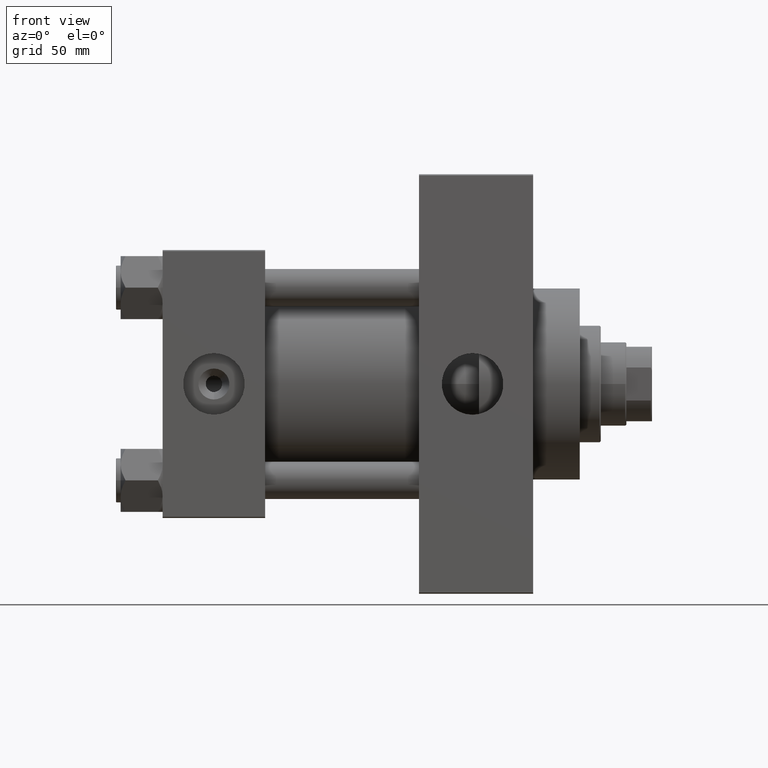
[diagram: clean part render]
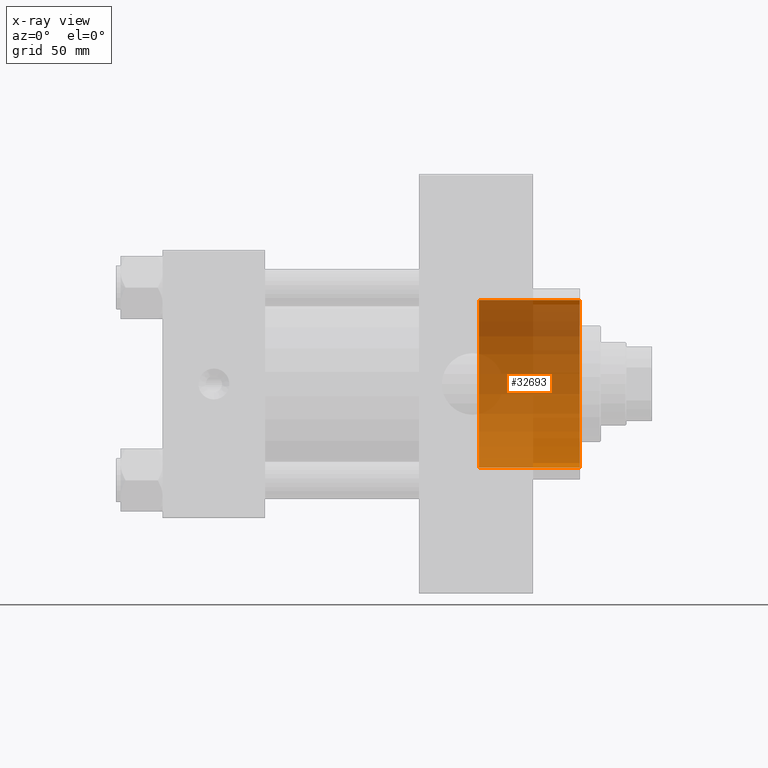
[diagram: x-ray — body ghosted, one internal face saturated and labeled with its STEP entity id]
A machine part, front view, then the same camera in x-ray: the body is ghosted and one INTERNAL B-rep face — a face not visible from any outside direction — is saturated and labeled: STEP entity #32693.
In plain terms, the highlighted cylindrical surface (partial cylindrical patch) has radius 36 mm, axis along (1, 0, 0).
Its self-contained STEP definition (entity closure, byte-faithful):
#337 = ORIENTED_EDGE ( 'NONE', *, *, #21138, .T. ) ;
#956 = VERTEX_POINT ( 'NONE', #22756 ) ;
#1190 = DIRECTION ( 'NONE',  ( 1.000000000000000000, -0.000000000000000000, -0.000000000000000000 ) ) ;
#1404 = VERTEX_POINT ( 'NONE', #42454 ) ;
#2006 = AXIS2_PLACEMENT_3D ( 'NONE', #32199, #46888, #43280 ) ;
#2780 = ORIENTED_EDGE ( 'NONE', *, *, #29400, .F. ) ;
#2856 = DIRECTION ( 'NONE',  ( 1.000000000000000000, 0.000000000000000000, 0.000000000000000000 ) ) ;
#3914 = VERTEX_POINT ( 'NONE', #39161 ) ;
#4357 = EDGE_CURVE ( 'NONE', #956, #3914, #11839, .T. ) ;
#5770 = VECTOR ( 'NONE', #25673, 1000.000000000000000 ) ;
#6008 = DIRECTION ( 'NONE',  ( 0.000000000000000000, 0.000000000000000000, -1.000000000000000000 ) ) ;
#10969 = DIRECTION ( 'NONE',  ( 0.000000000000000000, 0.000000000000000000, -1.000000000000000000 ) ) ;
#11759 = ORIENTED_EDGE ( 'NONE', *, *, #23507, .F. ) ;
#11839 = LINE ( 'NONE', #27246, #26707 ) ;
#15049 = EDGE_LOOP ( 'NONE', ( #2780, #11759, #22062, #337 ) ) ;
#17478 = CYLINDRICAL_SURFACE ( 'NONE', #2006, 36.00000000000000000 ) ;
#21021 = CIRCLE ( 'NONE', #44122, 36.00000000000000000 ) ;
#21096 = FACE_OUTER_BOUND ( 'NONE', #15049, .T. ) ;
#21138 = EDGE_CURVE ( 'NONE', #3914, #40209, #21021, .T. ) ;
#22062 = ORIENTED_EDGE ( 'NONE', *, *, #4357, .T. ) ;
#22756 = CARTESIAN_POINT ( 'NONE',  ( 135.7400000000000091, 0.000000000000000000, -36.00000000000000000 ) ) ;
#23507 = EDGE_CURVE ( 'NONE', #956, #1404, #37264, .T. ) ;
#25662 = DIRECTION ( 'NONE',  ( 1.000000000000000000, 0.000000000000000000, 0.000000000000000000 ) ) ;
#25673 = DIRECTION ( 'NONE',  ( 1.000000000000000000, -0.000000000000000000, -0.000000000000000000 ) ) ;
#26707 = VECTOR ( 'NONE', #1190, 1000.000000000000000 ) ;
#27246 = CARTESIAN_POINT ( 'NONE',  ( 135.7400000000000091, 0.000000000000000000, -36.00000000000000000 ) ) ;
#28206 = CARTESIAN_POINT ( 'NONE',  ( 135.7400000000000091, 0.000000000000000000, 0.000000000000000000 ) ) ;
#29400 = EDGE_CURVE ( 'NONE', #1404, #40209, #39903, .T. ) ;
#32199 = CARTESIAN_POINT ( 'NONE',  ( 135.7400000000000091, 0.000000000000000000, 0.000000000000000000 ) ) ;
#32693 = ADVANCED_FACE ( 'NONE', ( #21096 ), #17478, .F. ) ;
#36043 = CARTESIAN_POINT ( 'NONE',  ( 135.7400000000000091, 4.408728476930470856E-15, 36.00000000000000000 ) ) ;
#37211 = CARTESIAN_POINT ( 'NONE',  ( 179.0000000000000000, 0.000000000000000000, 0.000000000000000000 ) ) ;
#37264 = CIRCLE ( 'NONE', #45723, 36.00000000000000000 ) ;
#39161 = CARTESIAN_POINT ( 'NONE',  ( 179.0000000000000000, 0.000000000000000000, -36.00000000000000000 ) ) ;
#39903 = LINE ( 'NONE', #36043, #5770 ) ;
#40209 = VERTEX_POINT ( 'NONE', #43457 ) ;
#42454 = CARTESIAN_POINT ( 'NONE',  ( 135.7400000000000091, 4.408728476930470856E-15, 36.00000000000000000 ) ) ;
#43280 = DIRECTION ( 'NONE',  ( 0.000000000000000000, 0.000000000000000000, -1.000000000000000000 ) ) ;
#43457 = CARTESIAN_POINT ( 'NONE',  ( 179.0000000000000000, 4.408728476930470856E-15, 36.00000000000000000 ) ) ;
#44122 = AXIS2_PLACEMENT_3D ( 'NONE', #37211, #25662, #10969 ) ;
#45723 = AXIS2_PLACEMENT_3D ( 'NONE', #28206, #2856, #6008 ) ;
#46888 = DIRECTION ( 'NONE',  ( 1.000000000000000000, -0.000000000000000000, -0.000000000000000000 ) ) ;